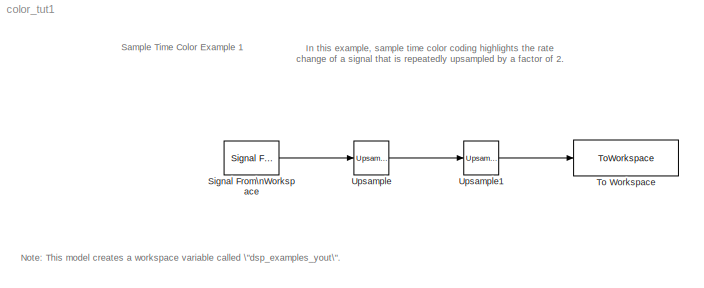
MODEL color_tut1
KIND model
CONFIG AbsTol = auto
CONFIG FixedStep = auto
CONFIG MaxStep = auto
CONFIG MinStep = auto
CONFIG RelTol = 1e-3
CONFIG Solver = ode45
CONFIG SolverMode = Auto
CONFIG StartTime = 0.0
CONFIG StopTime = 10.0
BLOCK [Reference] Signal From\nWorkspace  REF=dspsrcs3/Signal From\nWorkspace
  OutputAfterFinalValue = Setting To Zero
  Ports = [0, 1]
  SourceBlock = dspsrcs3/Signal From\nWorkspace
  SourceType = Signal From Workspace
  Ts = 1
  X = 1:1000
  nsamps = 1
BLOCK [ToWorkspace] To Workspace
  Decimation = 1
  MaxDataPoints = inf
  SampleTime = -1
  SaveFormat = Array
  VariableName = dsp_examples_yout
BLOCK [Reference] Upsample  REF=dspsigops/Upsample
  N = 2
  Ports = [1, 1]
  SourceBlock = dspsigops/Upsample
  SourceType = Upsample
  ic = 0
  mode = Maintain input frame size
  phase = 0
BLOCK [Reference] Upsample1  REF=dspsigops/Upsample
  N = 2
  Ports = [1, 1]
  SourceBlock = dspsigops/Upsample
  SourceType = Upsample
  ic = 0
  mode = Maintain input frame size
  phase = 0
LINE Signal From\nWorkspace:1 -> Upsample:1
LINE Upsample1:1 -> To Workspace:1
LINE Upsample:1 -> Upsample1:1
